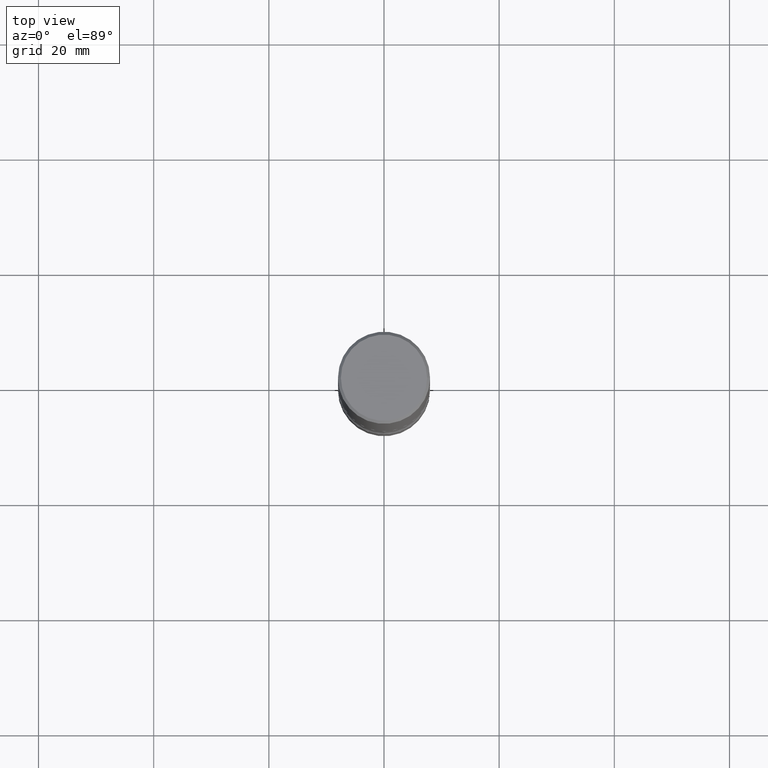
[diagram: clean part render]
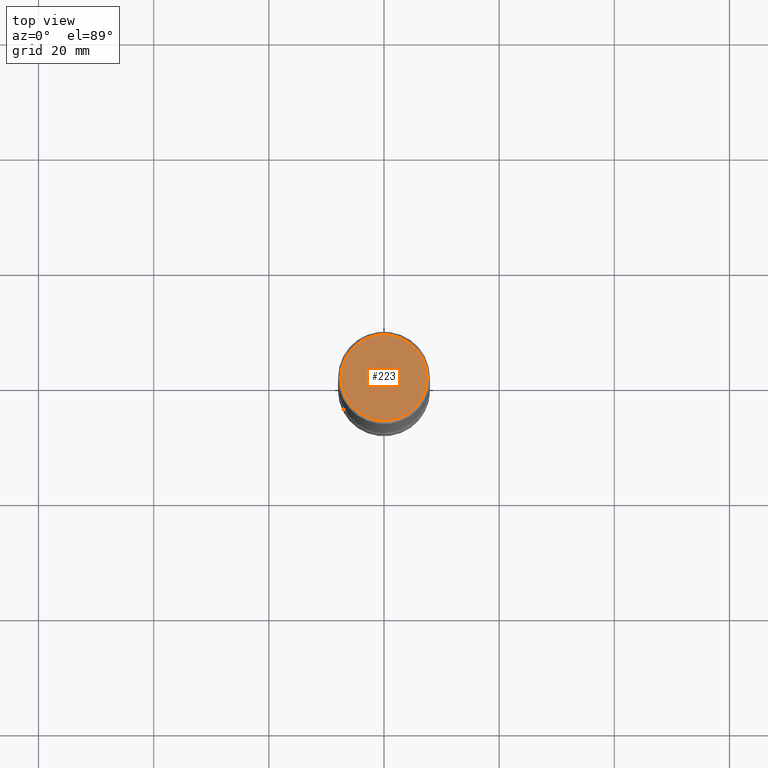
[diagram: same view with one face highlighted and labeled with its STEP entity id]
A machine part, top view. The second image highlights one B-rep face of the part: STEP entity #223.
In plain terms, the highlighted planar face has unit normal (0, -0, -1).
Its self-contained STEP definition (entity closure, byte-faithful):
#25 = DIRECTION ( 'NONE',  ( 2.438088387897960049E-29, -3.491481338843145188E-15, -1.000000000000000000 ) ) ;
#40 = EDGE_LOOP ( 'NONE', ( #322, #161 ) ) ;
#45 = CARTESIAN_POINT ( 'NONE',  ( -1.043851414335219820E-46, 1.490343170380447200E-32, 4.268512490100411279E-18 ) ) ;
#64 = DIRECTION ( 'NONE',  ( 1.000000000000000000, -6.982962677686267499E-15, 4.876053491004737710E-29 ) ) ;
#66 = VERTEX_POINT ( 'NONE', #438 ) ;
#69 = DIRECTION ( 'NONE',  ( -2.445468806185136597E-29, 3.491481338843145583E-15, 1.000000000000000000 ) ) ;
#85 = VERTEX_POINT ( 'NONE', #226 ) ;
#107 = CARTESIAN_POINT ( 'NONE',  ( -1.043851414335219820E-46, 1.490343170380447200E-32, 4.268512490100411279E-18 ) ) ;
#136 = DIRECTION ( 'NONE',  ( 1.000000000000000000, -6.982962677686267499E-15, 4.876053491004737710E-29 ) ) ;
#161 = ORIENTED_EDGE ( 'NONE', *, *, #507, .T. ) ;
#192 = AXIS2_PLACEMENT_3D ( 'NONE', #107, #69, #64 ) ;
#223 = ADVANCED_FACE ( 'NONE', ( #329 ), #404, .F. ) ;
#226 = CARTESIAN_POINT ( 'NONE',  ( 0.2949499999999998234, -2.127023677808859286E-15, 4.268512490115050658E-18 ) ) ;
#288 = DIRECTION ( 'NONE',  ( -1.000000000000000000, 6.982962677686265922E-15, -4.876176775795935793E-29 ) ) ;
#290 = CARTESIAN_POINT ( 'NONE',  ( 2.059624841783562880E-15, 0.2949499999999998234, -1.027678164646734974E-15 ) ) ;
#295 = AXIS2_PLACEMENT_3D ( 'NONE', #45, #350, #136 ) ;
#322 = ORIENTED_EDGE ( 'NONE', *, *, #341, .T. ) ;
#327 = AXIS2_PLACEMENT_3D ( 'NONE', #290, #25, #288 ) ;
#329 = FACE_OUTER_BOUND ( 'NONE', #40, .T. ) ;
#341 = EDGE_CURVE ( 'NONE', #66, #85, #542, .T. ) ;
#350 = DIRECTION ( 'NONE',  ( -2.445468806185136597E-29, 3.491481338843145583E-15, 1.000000000000000000 ) ) ;
#404 = PLANE ( 'NONE',  #327 ) ;
#438 = CARTESIAN_POINT ( 'NONE',  ( -0.2949499999999998234, 2.094539655171994135E-15, 4.268512490085885145E-18 ) ) ;
#507 = EDGE_CURVE ( 'NONE', #85, #66, #521, .T. ) ;
#521 = CIRCLE ( 'NONE', #192, 0.2949499999999998234 ) ;
#542 = CIRCLE ( 'NONE', #295, 0.2949499999999998234 ) ;